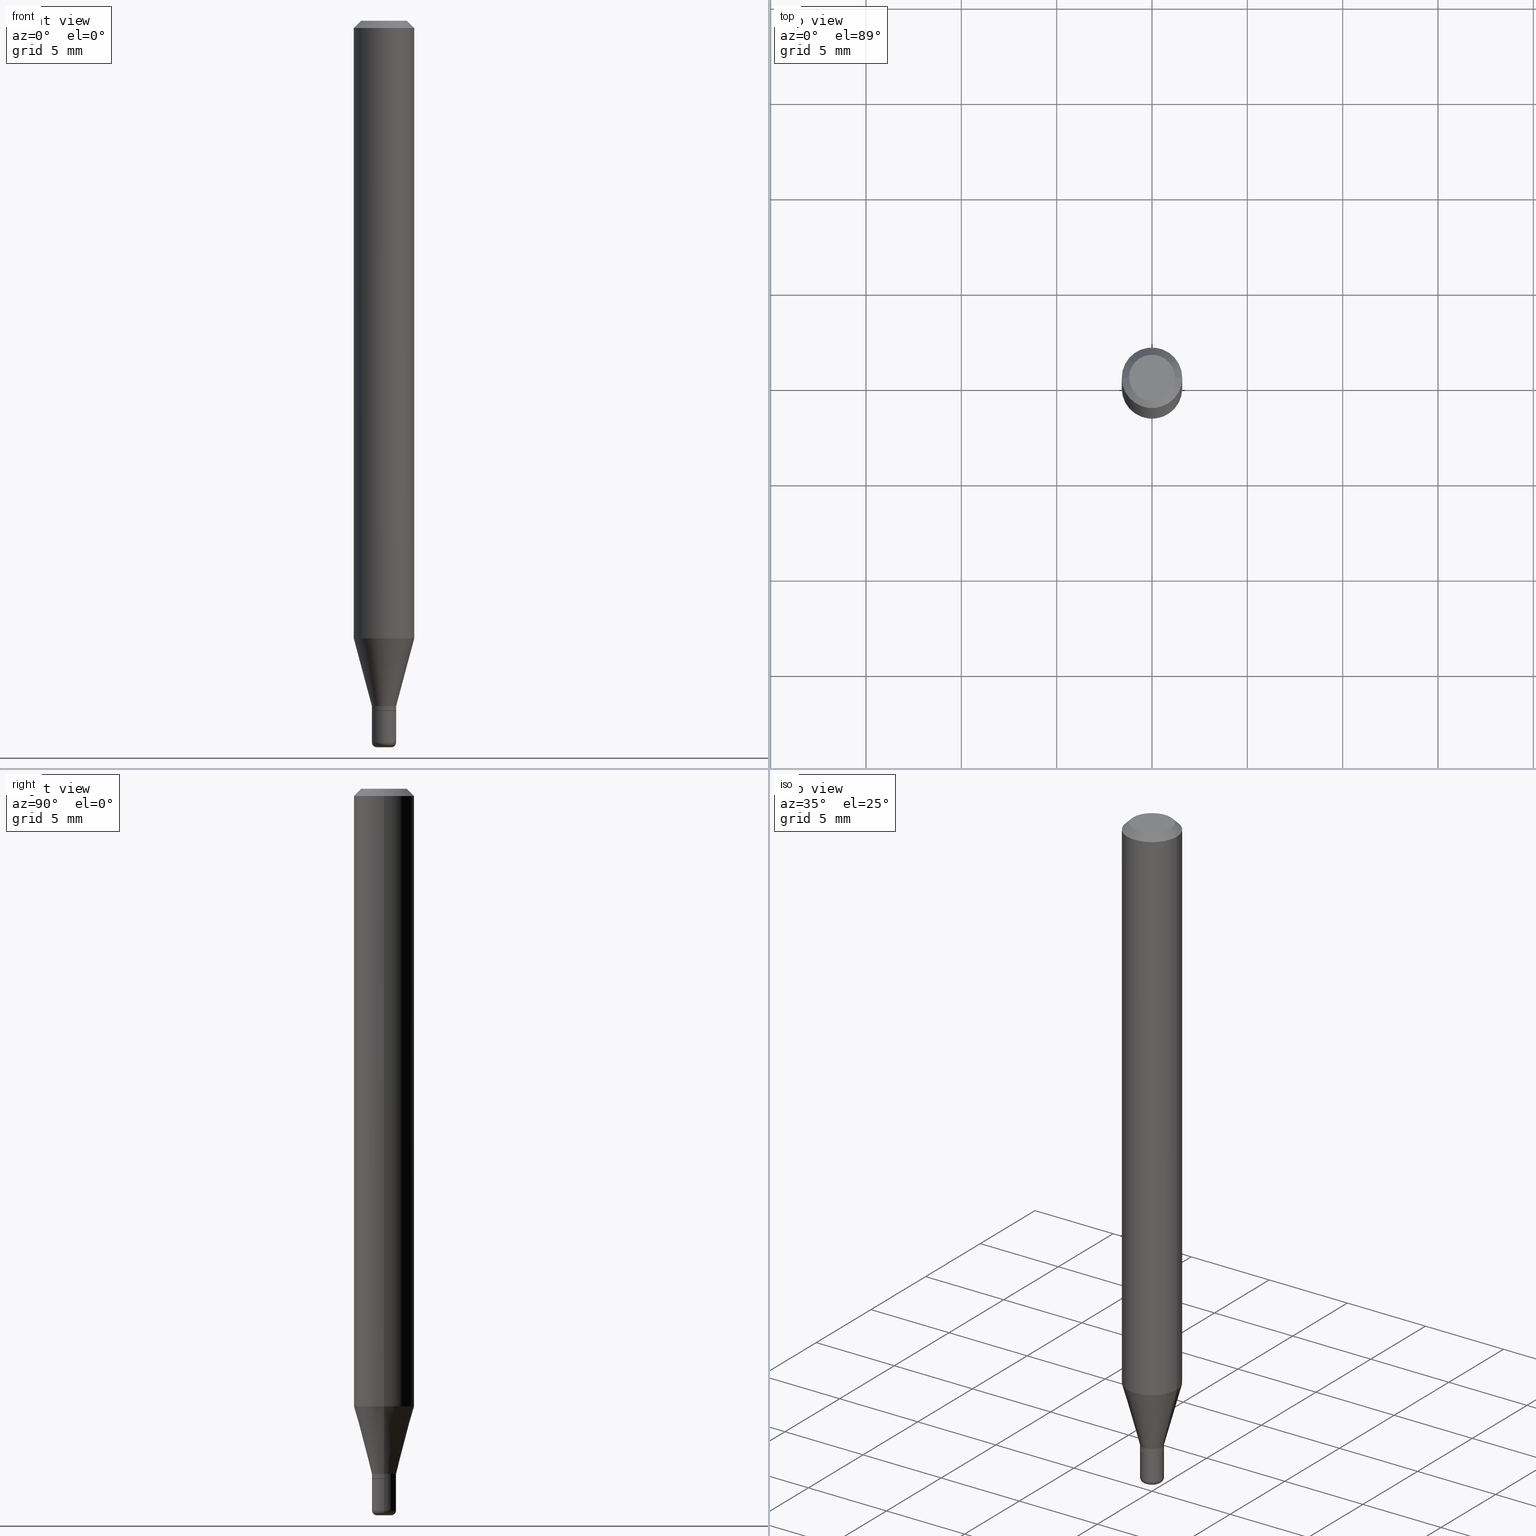
[diagram: canonical four-view strip — front | top / right | iso, engineering-drawing reading convention]
A machine part, canonical four-view strip (front | top / right | iso — engineering-drawing reading convention). The complete STEP part file that produces these views, byte-faithful:
ISO-10303-21;
HEADER;
FILE_DESCRIPTION (( 'STEP AP203' ),
    '1' );
FILE_NAME ('08664.STEP',
    '2024-02-29T20:14:49',
    ( '' ),
    ( '' ),
    'SwSTEP 2.0',
    'SolidWorks 2023',
    '' );
FILE_SCHEMA (( 'CONFIG_CONTROL_DESIGN' ));
ENDSEC;

DATA;
#1 = LINE ( 'NONE', #305, #176 ) ;
#2 = ADVANCED_FACE ( 'NONE', ( #71 ), #383, .T. ) ;
#3 = EDGE_CURVE ( 'NONE', #420, #175, #143, .T. ) ;
#4 = DIRECTION ( 'NONE',  ( -2.445468806185136597E-29, 3.491481338843145583E-15, 1.000000000000000000 ) ) ;
#5 = AXIS2_PLACEMENT_3D ( 'NONE', #472, #480, #190 ) ;
#6 = AXIS2_PLACEMENT_3D ( 'NONE', #204, #56, #365 ) ;
#7 = DIRECTION ( 'NONE',  ( -2.445468806185136877E-29, 3.491481338843145188E-15, 1.000000000000000000 ) ) ;
#8 = VERTEX_POINT ( 'NONE', #225 ) ;
#9 = DIRECTION ( 'NONE',  ( -2.445468806185136597E-29, 3.491481338843145583E-15, 1.000000000000000000 ) ) ;
#10 = CC_DESIGN_PERSON_AND_ORGANIZATION_ASSIGNMENT ( #458, #361, ( #311 ) ) ;
#11 = DIMENSIONAL_EXPONENTS ( 1.000000000000000000, 0.000000000000000000, 0.000000000000000000, 0.000000000000000000, 0.000000000000000000, 0.000000000000000000, 0.000000000000000000 ) ;
#12 = EDGE_LOOP ( 'NONE', ( #432, #274, #140, #326 ) ) ;
#13 = CYLINDRICAL_SURFACE ( 'NONE', #340, 0.06250000000000000000 ) ;
#14 = EDGE_CURVE ( 'NONE', #89, #186, #115, .T. ) ;
#15 = CIRCLE ( 'NONE', #40, 0.02499999999999998057 ) ;
#16 = CARTESIAN_POINT ( 'NONE',  ( 0.02499999999999997363, -5.148189234124219128E-15, -1.424500000000000322 ) ) ;
#17 = CIRCLE ( 'NONE', #228, 0.01500000000000000465 ) ;
#18 = ORIENTED_EDGE ( 'NONE', *, *, #103, .T. ) ;
#19 = SECURITY_CLASSIFICATION_LEVEL ( 'unclassified' ) ;
#20 = CARTESIAN_POINT ( 'NONE',  ( 3.484793048813820547E-29, -4.975360907851483175E-15, -1.425000000000000266 ) ) ;
#21 = ORIENTED_EDGE ( 'NONE', *, *, #435, .T. ) ;
#22 = ADVANCED_FACE ( 'NONE', ( #293 ), #123, .T. ) ;
#23 = PERSON_AND_ORGANIZATION ( #45, #463 ) ;
#24 = DIRECTION ( 'NONE',  ( -2.445468806185136597E-29, 3.491481338843145583E-15, 1.000000000000000000 ) ) ;
#25 = COORDINATED_UNIVERSAL_TIME_OFFSET ( 5, 0, .BEHIND. ) ;
#26 = FACE_OUTER_BOUND ( 'NONE', #370, .T. ) ;
#27 = AXIS2_PLACEMENT_3D ( 'NONE', #152, #425, #233 ) ;
#28 = EDGE_CURVE ( 'NONE', #268, #447, #504, .T. ) ;
#29 = DIRECTION ( 'NONE',  ( 1.000000000000000000, -6.982962677686266711E-15, 4.852736867747365086E-29 ) ) ;
#30 = CIRCLE ( 'NONE', #377, 0.02499999999999997363 ) ;
#31 = LINE ( 'NONE', #144, #198 ) ;
#32 = DIRECTION ( 'NONE',  ( -2.445468806185136597E-29, 3.491481338843145583E-15, 1.000000000000000000 ) ) ;
#33 = DIRECTION ( 'NONE',  ( -2.445468806185136877E-29, 3.491481338843145188E-15, 1.000000000000000000 ) ) ;
#34 = CIRCLE ( 'NONE', #41, 0.02449999999999996972 ) ;
#35 = CARTESIAN_POINT ( 'NONE',  ( 3.483570314410727746E-29, -4.973615167182062460E-15, -1.424500000000000322 ) ) ;
#36 = CARTESIAN_POINT ( 'NONE',  ( 3.460338360751968441E-29, -4.940446094463050737E-15, -1.415000000000000036 ) ) ;
#37 = ORIENTED_EDGE ( 'NONE', *, *, #95, .F. ) ;
#38 = CARTESIAN_POINT ( 'NONE',  ( 0.06250000000000000000, -4.888241796184395369E-15, -1.275048094716166869 ) ) ;
#39 = CC_DESIGN_PERSON_AND_ORGANIZATION_ASSIGNMENT ( #371, #494, ( #296 ) ) ;
#40 = AXIS2_PLACEMENT_3D ( 'NONE', #461, #4, #77 ) ;
#41 = AXIS2_PLACEMENT_3D ( 'NONE', #20, #9, #163 ) ;
#42 = DIRECTION ( 'NONE',  ( -2.445468806185136597E-29, 3.491481338843145583E-15, 1.000000000000000000 ) ) ;
#43 = ORIENTED_EDGE ( 'NONE', *, *, #352, .T. ) ;
#44 = DIRECTION ( 'NONE',  ( 1.000000000000000000, -6.982962677686262766E-15, 0.000000000000000000 ) ) ;
#45 = PERSON ( 'UNSPECIFIED', 'UNSPECIFIED', 'UNSPECIFIED', ('UNSPECIFIED'), ('UNSPECIFIED'), ('UNSPECIFIED') ) ;
#46 = FACE_OUTER_BOUND ( 'NONE', #336, .T. ) ;
#47 = AXIS2_PLACEMENT_3D ( 'NONE', #118, #351, #269 ) ;
#48 = APPROVAL_PERSON_ORGANIZATION ( #322, #220, #290 ) ;
#49 = CC_DESIGN_APPROVAL ( #220, ( #482 ) ) ;
#50 = DIRECTION ( 'NONE',  ( -2.445468806185136597E-29, 3.491481338843145583E-15, 1.000000000000000000 ) ) ;
#51 = ORIENTED_EDGE ( 'NONE', *, *, #54, .T. ) ;
#52 = LINE ( 'NONE', #202, #177 ) ;
#53 = CARTESIAN_POINT ( 'NONE',  ( -0.02499999999999997363, -4.795979483242037256E-15, -1.424500000000000322 ) ) ;
#54 = EDGE_CURVE ( 'NONE', #113, #239, #216, .T. ) ;
#55 = CALENDAR_DATE ( 2024, 29, 2 ) ;
#56 = DIRECTION ( 'NONE',  ( -2.445468806185136597E-29, 3.491481338843145583E-15, 1.000000000000000000 ) ) ;
#57 = EDGE_CURVE ( 'NONE', #447, #420, #206, .T. ) ;
#58 = EDGE_CURVE ( 'NONE', #184, #437, #191, .T. ) ;
#59 = ORIENTED_EDGE ( 'NONE', *, *, #58, .F. ) ;
#60 = DIRECTION ( 'NONE',  ( -0.7071067811865479058, 2.468850131082261005E-15, -0.7071067811865471286 ) ) ;
#61 = APPROVAL_DATE_TIME ( #405, #495 ) ;
#62 = DIRECTION ( 'NONE',  ( 1.000000000000000000, -6.982962677686262766E-15, 0.000000000000000000 ) ) ;
#63 = DIRECTION ( 'NONE',  ( -2.445468806185136877E-29, 3.491481338843145188E-15, 1.000000000000000000 ) ) ;
#64 = VECTOR ( 'NONE', #33, 39.37007874015748143 ) ;
#65 = ORIENTED_EDGE ( 'NONE', *, *, #343, .F. ) ;
#66 = DIRECTION ( 'NONE',  ( -1.000000000000000000, 6.982962677686266711E-15, 0.000000000000000000 ) ) ;
#67 = DIRECTION ( 'NONE',  ( -2.445468806185136597E-29, 3.491481338843145583E-15, 1.000000000000000000 ) ) ;
#68 = CARTESIAN_POINT ( 'NONE',  ( 3.484793048813820547E-29, -4.975360907851483175E-15, -1.425000000000000266 ) ) ;
#69 = ADVANCED_FACE ( 'NONE', ( #150 ), #223, .T. ) ;
#70 = DIRECTION ( 'NONE',  ( 1.000000000000000000, -6.982962677686265922E-15, 0.000000000000000000 ) ) ;
#71 = FACE_OUTER_BOUND ( 'NONE', #483, .T. ) ;
#72 = EDGE_CURVE ( 'NONE', #175, #8, #300, .T. ) ;
#73 = DIRECTION ( 'NONE',  ( -2.445468806185136597E-29, 3.491481338843145583E-15, 1.000000000000000000 ) ) ;
#74 = AXIS2_PLACEMENT_3D ( 'NONE', #145, #67, #417 ) ;
#75 = CARTESIAN_POINT ( 'NONE',  ( 3.118090342014177952E-29, -4.451806628829005278E-15, -1.275048094716166869 ) ) ;
#76 = CC_DESIGN_PERSON_AND_ORGANIZATION_ASSIGNMENT ( #318, #486, ( #238 ) ) ;
#77 = DIRECTION ( 'NONE',  ( 1.000000000000000000, -6.982962677686260400E-15, 0.000000000000000000 ) ) ;
#78 = PLANE ( 'NONE',  #356 ) ;
#79 = AXIS2_PLACEMENT_3D ( 'NONE', #36, #156, #307 ) ;
#80 = APPROVAL_PERSON_ORGANIZATION ( #497, #495, #141 ) ;
#81 = ORIENTED_EDGE ( 'NONE', *, *, #298, .T. ) ;
#82 = CARTESIAN_POINT ( 'NONE',  ( 0.06250000000000000000, -4.888073874380378612E-16, -0.01499999999999970281 ) ) ;
#83 = EDGE_LOOP ( 'NONE', ( #18, #212, #247, #65 ) ) ;
#84 = EDGE_LOOP ( 'NONE', ( #448, #515, #304, #467 ) ) ;
#85 = CARTESIAN_POINT ( 'NONE',  ( -0.02449999999999996972, -4.798628710416148457E-15, -1.425000000000000266 ) ) ;
#86 = FACE_OUTER_BOUND ( 'NONE', #12, .T. ) ;
#87 = DATE_AND_TIME ( #55, #148 ) ;
#88 = PLANE ( 'NONE',  #99 ) ;
#89 = VERTEX_POINT ( 'NONE', #466 ) ;
#90 = PERSON_AND_ORGANIZATION_ROLE ( 'creator' ) ;
#91 = CARTESIAN_POINT ( 'NONE',  ( 1.745740669421915009E-16, 0.02499999999999502620, -1.425000000000000266 ) ) ;
#92 = ORIENTED_EDGE ( 'NONE', *, *, #298, .F. ) ;
#93 = EDGE_CURVE ( 'NONE', #437, #184, #423, .T. ) ;
#94 = CYLINDRICAL_SURFACE ( 'NONE', #278, 0.02499999999999997710 ) ;
#95 = EDGE_CURVE ( 'NONE', #184, #239, #31, .T. ) ;
#96 = ORIENTED_EDGE ( 'NONE', *, *, #28, .T. ) ;
#97 = CONICAL_SURFACE ( 'NONE', #5, 0.06250000000000000000, 0.7853981633974488341 ) ;
#98 = DIRECTION ( 'NONE',  ( -2.445468806185136597E-29, 3.491481338843145583E-15, 1.000000000000000000 ) ) ;
#99 = AXIS2_PLACEMENT_3D ( 'NONE', #91, #211, #276 ) ;
#100 = VERTEX_POINT ( 'NONE', #375 ) ;
#101 = ORIENTED_EDGE ( 'NONE', *, *, #234, .F. ) ;
#102 = CALENDAR_DATE ( 2024, 29, 2 ) ;
#103 = EDGE_CURVE ( 'NONE', #209, #175, #15, .T. ) ;
#104 = DIRECTION ( 'NONE',  ( -6.982962677686266711E-15, -1.000000000000000000, 3.491481338843145583E-15 ) ) ;
#105 = EDGE_LOOP ( 'NONE', ( #37, #288, #182, #507 ) ) ;
#106 = ADVANCED_FACE ( 'NONE', ( #120 ), #308, .T. ) ;
#107 =( CONVERSION_BASED_UNIT ( 'INCH', #110 ) LENGTH_UNIT ( ) NAMED_UNIT ( #11 ) );
#108 = TOROIDAL_SURFACE ( 'NONE', #462, 0.01500000000000000291, 0.009999999999999946432 ) ;
#109 = EDGE_LOOP ( 'NONE', ( #43, #283 ) ) ;
#110 = LENGTH_MEASURE_WITH_UNIT ( LENGTH_MEASURE( 0.02539999999999999897 ), #415 );
#111 = ADVANCED_FACE ( 'NONE', ( #513 ), #451, .T. ) ;
#112 = DIRECTION ( 'NONE',  ( -2.445468806185136597E-29, 3.491481338843145583E-15, 1.000000000000000000 ) ) ;
#113 = VERTEX_POINT ( 'NONE', #38 ) ;
#114 = ADVANCED_FACE ( 'NONE', ( #312 ), #97, .T. ) ;
#115 = LINE ( 'NONE', #345, #146 ) ;
#116 = AXIS2_PLACEMENT_3D ( 'NONE', #396, #271, #428 ) ;
#117 = CC_DESIGN_APPROVAL ( #495, ( #296 ) ) ;
#118 = CARTESIAN_POINT ( 'NONE',  ( 3.582686580359766038E-29, -5.359686688179453325E-15, -1.500000000000000222 ) ) ;
#119 = ADVANCED_FACE ( 'NONE', ( #46 ), #78, .F. ) ;
#120 = FACE_OUTER_BOUND ( 'NONE', #244, .T. ) ;
#121 = EDGE_CURVE ( 'NONE', #100, #89, #265, .T. ) ;
#122 = CARTESIAN_POINT ( 'NONE',  ( -0.01500000000000000291, -5.095725784512272983E-15, -1.490000000000000213 ) ) ;
#123 = CONICAL_SURFACE ( 'NONE', #159, 0.02449999999999996972, 0.7853981633975507526 ) ;
#124 = CARTESIAN_POINT ( 'NONE',  ( 3.643748521215853910E-29, -5.202307194876288105E-15, -1.490000000000000213 ) ) ;
#125 = DIRECTION ( 'NONE',  ( -2.445468806185136597E-29, 3.491481338843145583E-15, 1.000000000000000000 ) ) ;
#126 = EDGE_LOOP ( 'NONE', ( #502, #203 ) ) ;
#127 = APPLICATION_CONTEXT ( 'configuration controlled 3d designs of mechanical parts and assemblies' ) ;
#128 = FACE_OUTER_BOUND ( 'NONE', #83, .T. ) ;
#129 = EDGE_LOOP ( 'NONE', ( #403, #422, #385, #92 ) ) ;
#130 = CONICAL_SURFACE ( 'NONE', #185, 0.02499999999999998057, 0.2617993877991491858 ) ;
#131 = FACE_OUTER_BOUND ( 'NONE', #109, .T. ) ;
#132 = ORIENTED_EDGE ( 'NONE', *, *, #205, .F. ) ;
#133 = DIRECTION ( 'NONE',  ( -2.445468806185136597E-29, 3.491481338843145583E-15, 1.000000000000000000 ) ) ;
#134 = CALENDAR_DATE ( 2024, 29, 2 ) ;
#135 = PLANE ( 'NONE',  #232 ) ;
#136 = VERTEX_POINT ( 'NONE', #275 ) ;
#137 = COORDINATED_UNIVERSAL_TIME_OFFSET ( 5, 0, .BEHIND. ) ;
#138 = AXIS2_PLACEMENT_3D ( 'NONE', #334, #112, #416 ) ;
#139 = CARTESIAN_POINT ( 'NONE',  ( 0.000000000000000000, 0.000000000000000000, 0.000000000000000000 ) ) ;
#140 = ORIENTED_EDGE ( 'NONE', *, *, #234, .T. ) ;
#141 = APPROVAL_ROLE ( '' ) ;
#142 = DIRECTION ( 'NONE',  ( 0.000000000000000000, 0.000000000000000000, 1.000000000000000000 ) ) ;
#143 = LINE ( 'NONE', #258, #64 ) ;
#144 = CARTESIAN_POINT ( 'NONE',  ( 0.06250000000000000000, -4.811533449433669144E-16, -0.01499999999999970281 ) ) ;
#145 = CARTESIAN_POINT ( 'NONE',  ( 0.000000000000000000, 0.000000000000000000, 0.000000000000000000 ) ) ;
#146 = VECTOR ( 'NONE', #63, 39.37007874015748143 ) ;
#147 = DIRECTION ( 'NONE',  ( 0.7071067811866199593, -2.468850131083015945E-15, 0.7071067811864750752 ) ) ;
#148 = LOCAL_TIME ( 15, 14, 49.00000000000000000, #240 ) ;
#149 = MECHANICAL_CONTEXT ( 'NONE', #335, 'mechanical' ) ;
#150 = FACE_OUTER_BOUND ( 'NONE', #306, .T. ) ;
#151 = ORIENTED_EDGE ( 'NONE', *, *, #28, .F. ) ;
#152 = CARTESIAN_POINT ( 'NONE',  ( 3.643748521215853910E-29, -5.202307194876288105E-15, -1.490000000000000213 ) ) ;
#153 = APPROVAL_PERSON_ORGANIZATION ( #491, #270, #439 ) ;
#154 = VERTEX_POINT ( 'NONE', #394 ) ;
#155 = PLANE ( 'NONE',  #47 ) ;
#156 = DIRECTION ( 'NONE',  ( -2.445468806185136597E-29, 3.491481338843145583E-15, 1.000000000000000000 ) ) ;
#157 = ORIENTED_EDGE ( 'NONE', *, *, #479, .T. ) ;
#158 = ADVANCED_BREP_SHAPE_REPRESENTATION ( '08664', ( #259, #421, #199 ), #424 ) ;
#159 = AXIS2_PLACEMENT_3D ( 'NONE', #68, #32, #339 ) ;
#160 = AXIS2_PLACEMENT_3D ( 'NONE', #257, #505, #454 ) ;
#161 = ADVANCED_FACE ( 'NONE', ( #433 ), #473, .T. ) ;
#162 = DIRECTION ( 'NONE',  ( 1.000000000000000000, -6.982962677686254878E-15, 0.000000000000000000 ) ) ;
#163 = DIRECTION ( 'NONE',  ( 1.000000000000000000, -6.982962677686282488E-15, 0.000000000000000000 ) ) ;
#164 = CC_DESIGN_PERSON_AND_ORGANIZATION_ASSIGNMENT ( #23, #453, ( #296 ) ) ;
#165 = VERTEX_POINT ( 'NONE', #85 ) ;
#166 = LINE ( 'NONE', #484, #310 ) ;
#167 = APPROVAL_DATE_TIME ( #210, #270 ) ;
#168 = VECTOR ( 'NONE', #60, 39.37007874015748143 ) ;
#169 = DIRECTION ( 'NONE',  ( 1.000000000000000000, -6.982962677686265922E-15, 4.876176775795935793E-29 ) ) ;
#170 = ORIENTED_EDGE ( 'NONE', *, *, #386, .F. ) ;
#171 = CARTESIAN_POINT ( 'NONE',  ( 0.02499999999999998057, -5.115020161405207405E-15, -1.415000000000000036 ) ) ;
#172 = APPROVAL_STATUS ( 'not_yet_approved' ) ;
#173 = UNCERTAINTY_MEASURE_WITH_UNIT (LENGTH_MEASURE( 1.000000000000000082E-05 ), #107, 'distance_accuracy_value', 'NONE');
#174 = DIRECTION ( 'NONE',  ( -2.438088387897960049E-29, 3.491481338843145188E-15, 1.000000000000000000 ) ) ;
#175 = VERTEX_POINT ( 'NONE', #430 ) ;
#176 = VECTOR ( 'NONE', #7, 39.37007874015748143 ) ;
#177 = VECTOR ( 'NONE', #243, 39.37007874015748143 ) ;
#178 = DIRECTION ( 'NONE',  ( -2.445468806185136597E-29, 3.491481338843145583E-15, 1.000000000000000000 ) ) ;
#179 = ORIENTED_EDGE ( 'NONE', *, *, #455, .F. ) ;
#180 = ORIENTED_EDGE ( 'NONE', *, *, #3, .T. ) ;
#181 = CARTESIAN_POINT ( 'NONE',  ( 3.668203209277704895E-29, -5.237222008264718177E-15, -1.500000000000000222 ) ) ;
#182 = ORIENTED_EDGE ( 'NONE', *, *, #392, .T. ) ;
#183 = DIRECTION ( 'NONE',  ( -2.445468806185136597E-29, 3.491481338843145583E-15, 1.000000000000000000 ) ) ;
#184 = VERTEX_POINT ( 'NONE', #197 ) ;
#185 = AXIS2_PLACEMENT_3D ( 'NONE', #325, #251, #315 ) ;
#186 = VERTEX_POINT ( 'NONE', #235 ) ;
#187 = DIRECTION ( 'NONE',  ( -2.445468806185136597E-29, 3.491481338843145583E-15, 1.000000000000000000 ) ) ;
#188 = ORIENTED_EDGE ( 'NONE', *, *, #93, .T. ) ;
#189 = EDGE_LOOP ( 'NONE', ( #485, #353, #314, #280 ) ) ;
#190 = DIRECTION ( 'NONE',  ( -1.000000000000000000, 6.982962677686266711E-15, 0.000000000000000000 ) ) ;
#191 = CIRCLE ( 'NONE', #248, 0.04750000000000000749 ) ;
#192 = CIRCLE ( 'NONE', #501, 0.06250000000000000000 ) ;
#193 = DIRECTION ( 'NONE',  ( -2.445468806185136597E-29, 3.491481338843145583E-15, 1.000000000000000000 ) ) ;
#194 = ORIENTED_EDGE ( 'NONE', *, *, #386, .T. ) ;
#195 = DIRECTION ( 'NONE',  ( -1.000000000000000000, 7.105427357600964782E-15, 0.000000000000000000 ) ) ;
#196 = EDGE_CURVE ( 'NONE', #186, #262, #217, .T. ) ;
#197 = CARTESIAN_POINT ( 'NONE',  ( 0.04750000000000000749, -4.035134999187568762E-16, 2.731847993664288856E-16 ) ) ;
#198 = VECTOR ( 'NONE', #295, 39.37007874015748143 ) ;
#199 = AXIS2_PLACEMENT_3D ( 'NONE', #139, #142, #297 ) ;
#200 = DIRECTION ( 'NONE',  ( 1.000000000000000000, -6.982962677686265922E-15, 4.876176775795935793E-29 ) ) ;
#201 = EDGE_LOOP ( 'NONE', ( #358, #263, #409, #379 ) ) ;
#202 = CARTESIAN_POINT ( 'NONE',  ( 0.02499999999999997363, -1.745740669421564705E-16, 1.219044193948982547E-30 ) ) ;
#203 = ORIENTED_EDGE ( 'NONE', *, *, #468, .F. ) ;
#204 = CARTESIAN_POINT ( 'NONE',  ( 3.460338360751968441E-29, -4.940446094463050737E-15, -1.415000000000000036 ) ) ;
#205 = EDGE_CURVE ( 'NONE', #89, #100, #398, .T. ) ;
#206 = CIRCLE ( 'NONE', #389, 0.02499999999999997363 ) ;
#207 = DATE_AND_TIME ( #284, #267 ) ;
#208 = LINE ( 'NONE', #488, #168 ) ;
#209 = VERTEX_POINT ( 'NONE', #355 ) ;
#210 = DATE_AND_TIME ( #242, #441 ) ;
#211 = DIRECTION ( 'NONE',  ( 2.438088387897960049E-29, -3.491481338843145188E-15, -1.000000000000000000 ) ) ;
#212 = ORIENTED_EDGE ( 'NONE', *, *, #72, .T. ) ;
#213 = ADVANCED_FACE ( 'NONE', ( #303 ), #155, .F. ) ;
#214 = APPLICATION_PROTOCOL_DEFINITION ( 'international standard', 'config_control_design', 1994, #127 ) ;
#215 = CYLINDRICAL_SURFACE ( 'NONE', #74, 0.06250000000000000000 ) ;
#216 = LINE ( 'NONE', #508, #273 ) ;
#217 = CIRCLE ( 'NONE', #509, 0.02500000000000000139 ) ;
#218 = VECTOR ( 'NONE', #286, 39.37007874015748143 ) ;
#219 = DIRECTION ( 'NONE',  ( -2.445468806185136597E-29, 3.491481338843145583E-15, 1.000000000000000000 ) ) ;
#220 = APPROVAL ( #368, 'UNSPECIFIED' ) ;
#221 = CARTESIAN_POINT ( 'NONE',  ( -0.02499999999999998057, -4.762810410523025533E-15, -1.415000000000000036 ) ) ;
#222 = APPLICATION_PROTOCOL_DEFINITION ( 'international standard', 'config_control_design', 1994, #335 ) ;
#223 = CYLINDRICAL_SURFACE ( 'NONE', #138, 0.02499999999999997710 ) ;
#224 = CARTESIAN_POINT ( 'NONE',  ( 3.118090342014177952E-29, -4.451806628829005278E-15, -1.275048094716166869 ) ) ;
#225 = CARTESIAN_POINT ( 'NONE',  ( -0.06250000000000000000, -4.007717418978941084E-15, -1.275048094716166869 ) ) ;
#226 = CLOSED_SHELL ( 'NONE', ( #476, #161, #397, #106, #313, #213 ) ) ;
#227 = CARTESIAN_POINT ( 'NONE',  ( -6.680649051745406845E-45, 9.538196290434862081E-31, 2.731847993664263218E-16 ) ) ;
#228 = AXIS2_PLACEMENT_3D ( 'NONE', #181, #183, #70 ) ;
#229 = DIRECTION ( 'NONE',  ( -2.445468806185136597E-29, 3.491481338843145583E-15, 1.000000000000000000 ) ) ;
#230 = CARTESIAN_POINT ( 'NONE',  ( 0.000000000000000000, 0.000000000000000000, 0.000000000000000000 ) ) ;
#231 = DIRECTION ( 'NONE',  ( 1.000000000000000000, -6.982962677686265922E-15, 4.876176775795935232E-29 ) ) ;
#232 = AXIS2_PLACEMENT_3D ( 'NONE', #436, #174, #169 ) ;
#233 = DIRECTION ( 'NONE',  ( 1.000000000000000000, -6.982962677686269866E-15, 0.000000000000000000 ) ) ;
#234 = EDGE_CURVE ( 'NONE', #447, #209, #1, .T. ) ;
#235 = CARTESIAN_POINT ( 'NONE',  ( -0.02500000000000000139, -4.911198367423860436E-15, -1.425000000000000266 ) ) ;
#236 = PRODUCT_DEFINITION_SHAPE ( 'NONE', 'NONE',  #482 ) ;
#237 = DIRECTION ( 'NONE',  ( 1.000000000000000000, -6.982962677686266711E-15, 4.876176775795935793E-29 ) ) ;
#238 = SECURITY_CLASSIFICATION ( '', '', #19 ) ;
#239 = VERTEX_POINT ( 'NONE', #82 ) ;
#240 = COORDINATED_UNIVERSAL_TIME_OFFSET ( 5, 0, .BEHIND. ) ;
#241 = DIRECTION ( 'NONE',  ( 1.000000000000000000, -6.982962677686266711E-15, 0.000000000000000000 ) ) ;
#242 = CALENDAR_DATE ( 2024, 29, 2 ) ;
#243 = DIRECTION ( 'NONE',  ( -2.445468806185136877E-29, 3.491481338843145188E-15, 1.000000000000000000 ) ) ;
#244 = EDGE_LOOP ( 'NONE', ( #292, #444, #21, #330 ) ) ;
#245 = DIRECTION ( 'NONE',  ( -2.445468806185136597E-29, 3.491481338843145583E-15, 1.000000000000000000 ) ) ;
#246 = ORIENTED_EDGE ( 'NONE', *, *, #95, .T. ) ;
#247 = ORIENTED_EDGE ( 'NONE', *, *, #498, .F. ) ;
#248 = AXIS2_PLACEMENT_3D ( 'NONE', #301, #73, #29 ) ;
#249 = COORDINATED_UNIVERSAL_TIME_OFFSET ( 5, 0, .BEHIND. ) ;
#250 = AXIS2_PLACEMENT_3D ( 'NONE', #341, #178, #413 ) ;
#251 = DIRECTION ( 'NONE',  ( -2.445468806185136597E-29, 3.491481338843145583E-15, 1.000000000000000000 ) ) ;
#252 = ORIENTED_EDGE ( 'NONE', *, *, #324, .F. ) ;
#253 = EDGE_CURVE ( 'NONE', #175, #209, #487, .T. ) ;
#254 = SHAPE_DEFINITION_REPRESENTATION ( #236, #158 ) ;
#255 = DIRECTION ( 'NONE',  ( -2.445468806185136597E-29, 3.491481338843145583E-15, 1.000000000000000000 ) ) ;
#256 = EDGE_LOOP ( 'NONE', ( #342, #179 ) ) ;
#257 = CARTESIAN_POINT ( 'NONE',  ( 3.484793048813820547E-29, -4.975360907851483175E-15, -1.425000000000000266 ) ) ;
#258 = CARTESIAN_POINT ( 'NONE',  ( -0.02499999999999997710, 1.776356839400248838E-16, -1.229733772563725430E-30 ) ) ;
#259 = MANIFOLD_SOLID_BREP ( 'Body-Move/Copy2[1]', #226 ) ;
#260 = VECTOR ( 'NONE', #147, 39.37007874015748143 ) ;
#261 = CONICAL_SURFACE ( 'NONE', #6, 0.02499999999999998057, 0.2617993877991491858 ) ;
#262 = VERTEX_POINT ( 'NONE', #388 ) ;
#263 = ORIENTED_EDGE ( 'NONE', *, *, #14, .T. ) ;
#264 = ORIENTED_EDGE ( 'NONE', *, *, #407, .F. ) ;
#265 = CIRCLE ( 'NONE', #289, 0.02499999999999994588 ) ;
#266 = DIRECTION ( 'NONE',  ( -1.000000000000000000, 6.982962677686265922E-15, -4.876176775795935793E-29 ) ) ;
#267 = LOCAL_TIME ( 15, 14, 49.00000000000000000, #442 ) ;
#268 = VERTEX_POINT ( 'NONE', #475 ) ;
#269 = DIRECTION ( 'NONE',  ( 1.000000000000000000, -6.982962677686265922E-15, 4.876176775795935793E-29 ) ) ;
#270 = APPROVAL ( #410, 'UNSPECIFIED' ) ;
#271 = DIRECTION ( 'NONE',  ( -2.445468806185136597E-29, 3.491481338843145583E-15, 1.000000000000000000 ) ) ;
#272 = DIRECTION ( 'NONE',  ( 7.105427357601001859E-15, 1.000000000000000000, -3.491481338843145583E-15 ) ) ;
#273 = VECTOR ( 'NONE', #465, 39.37007874015748143 ) ;
#274 = ORIENTED_EDGE ( 'NONE', *, *, #407, .T. ) ;
#275 = CARTESIAN_POINT ( 'NONE',  ( 0.01500000000000000465, -5.341966448430012335E-15, -1.500000000000000222 ) ) ;
#276 = DIRECTION ( 'NONE',  ( -1.000000000000000000, 6.982962677686265922E-15, -4.876176775795935793E-29 ) ) ;
#277 = DIRECTION ( 'NONE',  ( -2.445468806185136597E-29, 3.491481338843145583E-15, 1.000000000000000000 ) ) ;
#278 = AXIS2_PLACEMENT_3D ( 'NONE', #399, #50, #200 ) ;
#279 = DIRECTION ( 'NONE',  ( 1.000000000000000000, -6.982962677686261977E-15, 0.000000000000000000 ) ) ;
#280 = ORIENTED_EDGE ( 'NONE', *, *, #54, .F. ) ;
#281 = APPROVAL_DATE_TIME ( #207, #220 ) ;
#282 = DIRECTION ( 'NONE',  ( 1.000000000000000000, -6.982962677686266711E-15, 0.000000000000000000 ) ) ;
#283 = ORIENTED_EDGE ( 'NONE', *, *, #196, .T. ) ;
#284 = CALENDAR_DATE ( 2024, 29, 2 ) ;
#285 = EDGE_CURVE ( 'NONE', #154, #89, #470, .T. ) ;
#286 = DIRECTION ( 'NONE',  ( 0.2588190451025205174, 1.565188264969628476E-15, 0.9659258262890684232 ) ) ;
#287 = EDGE_LOOP ( 'NONE', ( #299, #518, #157, #132 ) ) ;
#288 = ORIENTED_EDGE ( 'NONE', *, *, #93, .F. ) ;
#289 = AXIS2_PLACEMENT_3D ( 'NONE', #124, #193, #481 ) ;
#290 = APPROVAL_ROLE ( '' ) ;
#291 = CIRCLE ( 'NONE', #516, 0.02500000000000000139 ) ;
#292 = ORIENTED_EDGE ( 'NONE', *, *, #14, .F. ) ;
#293 = FACE_OUTER_BOUND ( 'NONE', #360, .T. ) ;
#294 = CARTESIAN_POINT ( 'NONE',  ( -0.06250000000000000000, -1.808000214605762576E-15, -0.01499999999999970281 ) ) ;
#295 = DIRECTION ( 'NONE',  ( 0.7071067811865479058, -7.319954787623257623E-15, -0.7071067811865471286 ) ) ;
#296 = PRODUCT_DEFINITION_FORMATION_WITH_SPECIFIED_SOURCE ( 'ANY', '', #311, .NOT_KNOWN. ) ;
#297 = DIRECTION ( 'NONE',  ( 1.000000000000000000, 0.000000000000000000, 0.000000000000000000 ) ) ;
#298 = EDGE_CURVE ( 'NONE', #8, #113, #514, .T. ) ;
#299 = ORIENTED_EDGE ( 'NONE', *, *, #285, .F. ) ;
#300 = LINE ( 'NONE', #221, #348 ) ;
#301 = CARTESIAN_POINT ( 'NONE',  ( -6.680649051745406845E-45, 9.538196290434862081E-31, 2.731847993664263218E-16 ) ) ;
#302 = CIRCLE ( 'NONE', #250, 0.01500000000000000465 ) ;
#303 = FACE_OUTER_BOUND ( 'NONE', #126, .T. ) ;
#304 = ORIENTED_EDGE ( 'NONE', *, *, #121, .F. ) ;
#305 = CARTESIAN_POINT ( 'NONE',  ( 0.02499999999999997710, -1.745740669421564952E-16, 1.219044193948982897E-30 ) ) ;
#306 = EDGE_LOOP ( 'NONE', ( #347, #180, #374, #101 ) ) ;
#307 = DIRECTION ( 'NONE',  ( 1.000000000000000000, -6.982962677686260400E-15, 0.000000000000000000 ) ) ;
#308 = CYLINDRICAL_SURFACE ( 'NONE', #309, 0.02499999999999997363 ) ;
#309 = AXIS2_PLACEMENT_3D ( 'NONE', #517, #42, #387 ) ;
#310 = VECTOR ( 'NONE', #440, 39.37007874015748143 ) ;
#311 = PRODUCT ( '08664', '08664', '', ( #149 ) ) ;
#312 = FACE_OUTER_BOUND ( 'NONE', #105, .T. ) ;
#313 = ADVANCED_FACE ( 'NONE', ( #354 ), #108, .T. ) ;
#314 = ORIENTED_EDGE ( 'NONE', *, *, #367, .F. ) ;
#315 = DIRECTION ( 'NONE',  ( 1.000000000000000000, -6.982962677686260400E-15, 0.000000000000000000 ) ) ;
#316 = ADVANCED_FACE ( 'NONE', ( #496 ), #135, .F. ) ;
#317 = ORIENTED_EDGE ( 'NONE', *, *, #367, .T. ) ;
#318 = PERSON_AND_ORGANIZATION ( #45, #463 ) ;
#319 = DIRECTION ( 'NONE',  ( 1.000000000000000000, -6.982962677686254878E-15, 0.000000000000000000 ) ) ;
#320 = AXIS2_PLACEMENT_3D ( 'NONE', #75, #187, #44 ) ;
#321 = CC_DESIGN_SECURITY_CLASSIFICATION ( #238, ( #296 ) ) ;
#322 = PERSON_AND_ORGANIZATION ( #45, #463 ) ;
#323 = CARTESIAN_POINT ( 'NONE',  ( -0.06250000000000000000, 4.440892098500626162E-16, -3.074334431409316114E-30 ) ) ;
#324 = EDGE_CURVE ( 'NONE', #8, #499, #327, .T. ) ;
#325 = CARTESIAN_POINT ( 'NONE',  ( 3.460338360751968441E-29, -4.940446094463050737E-15, -1.415000000000000036 ) ) ;
#326 = ORIENTED_EDGE ( 'NONE', *, *, #253, .F. ) ;
#327 = LINE ( 'NONE', #323, #366 ) ;
#328 = ORIENTED_EDGE ( 'NONE', *, *, #337, .T. ) ;
#329 = AXIS2_PLACEMENT_3D ( 'NONE', #230, #391, #231 ) ;
#330 = ORIENTED_EDGE ( 'NONE', *, *, #196, .F. ) ;
#331 = LOCAL_TIME ( 15, 14, 49.00000000000000000, #137 ) ;
#332 = PERSON_AND_ORGANIZATION ( #45, #463 ) ;
#333 = CARTESIAN_POINT ( 'NONE',  ( 3.643748521215853910E-29, -5.202307194876288105E-15, -1.490000000000000213 ) ) ;
#334 = CARTESIAN_POINT ( 'NONE',  ( 0.000000000000000000, 0.000000000000000000, 0.000000000000000000 ) ) ;
#335 = APPLICATION_CONTEXT ( 'configuration controlled 3d designs of mechanical parts and assemblies' ) ;
#336 = EDGE_LOOP ( 'NONE', ( #188, #490 ) ) ;
#337 = EDGE_CURVE ( 'NONE', #268, #165, #34, .T. ) ;
#338 = DIRECTION ( 'NONE',  ( 1.000000000000000000, -6.982962677686269866E-15, 4.883557194083113462E-29 ) ) ;
#339 = DIRECTION ( 'NONE',  ( 1.000000000000000000, -6.982962677686282488E-15, 0.000000000000000000 ) ) ;
#340 = AXIS2_PLACEMENT_3D ( 'NONE', #372, #98, #237 ) ;
#341 = CARTESIAN_POINT ( 'NONE',  ( 3.668203209277704895E-29, -5.237222008264718177E-15, -1.500000000000000222 ) ) ;
#342 = ORIENTED_EDGE ( 'NONE', *, *, #337, .F. ) ;
#343 = EDGE_CURVE ( 'NONE', #209, #113, #449, .T. ) ;
#344 = ADVANCED_FACE ( 'NONE', ( #443 ), #13, .T. ) ;
#345 = CARTESIAN_POINT ( 'NONE',  ( -0.02499999999999997363, 1.776356839400248591E-16, -1.229733772563725079E-30 ) ) ;
#346 = CARTESIAN_POINT ( 'NONE',  ( 3.316907271900976589E-16, 0.04750000000000000749, -2.925296391183627249E-17 ) ) ;
#347 = ORIENTED_EDGE ( 'NONE', *, *, #57, .T. ) ;
#348 = VECTOR ( 'NONE', #381, 39.37007874015748143 ) ;
#349 = CIRCLE ( 'NONE', #489, 0.06250000000000000000 ) ;
#350 = CARTESIAN_POINT ( 'NONE',  ( 3.484793048813820547E-29, -4.975360907851483175E-15, -1.425000000000000266 ) ) ;
#351 = DIRECTION ( 'NONE',  ( -2.438088387897960049E-29, 3.491481338843145188E-15, 1.000000000000000000 ) ) ;
#352 = EDGE_CURVE ( 'NONE', #262, #186, #291, .T. ) ;
#353 = ORIENTED_EDGE ( 'NONE', *, *, #324, .T. ) ;
#354 = FACE_OUTER_BOUND ( 'NONE', #287, .T. ) ;
#355 = CARTESIAN_POINT ( 'NONE',  ( 0.02499999999999998057, -5.115020161405207405E-15, -1.415000000000000036 ) ) ;
#356 = AXIS2_PLACEMENT_3D ( 'NONE', #346, #427, #266 ) ;
#357 = CIRCLE ( 'NONE', #510, 0.009999999999999944697 ) ;
#358 = ORIENTED_EDGE ( 'NONE', *, *, #121, .T. ) ;
#359 = CARTESIAN_POINT ( 'NONE',  ( 3.668203209277632395E-31, -5.237222008264614861E-17, -0.01499999999999970281 ) ) ;
#360 = EDGE_LOOP ( 'NONE', ( #170, #373, #96, #264 ) ) ;
#361 = PERSON_AND_ORGANIZATION_ROLE ( 'design_owner' ) ;
#362 = DIRECTION ( 'NONE',  ( -2.445468806185136877E-29, 3.491481338843145188E-15, 1.000000000000000000 ) ) ;
#363 = CC_DESIGN_DATE_AND_TIME_ASSIGNMENT ( #87, #445, ( #238 ) ) ;
#364 = DATE_AND_TIME ( #102, #331 ) ;
#365 = DIRECTION ( 'NONE',  ( 1.000000000000000000, -6.982962677686260400E-15, 0.000000000000000000 ) ) ;
#366 = VECTOR ( 'NONE', #362, 39.37007874015748143 ) ;
#367 = EDGE_CURVE ( 'NONE', #239, #499, #349, .T. ) ;
#368 = APPROVAL_STATUS ( 'not_yet_approved' ) ;
#369 = CARTESIAN_POINT ( 'NONE',  ( 3.643748521215853910E-29, -5.202307194876288105E-15, -1.490000000000000213 ) ) ;
#370 = EDGE_LOOP ( 'NONE', ( #252, #81, #51, #450 ) ) ;
#371 = PERSON_AND_ORGANIZATION ( #45, #463 ) ;
#372 = CARTESIAN_POINT ( 'NONE',  ( 0.000000000000000000, 0.000000000000000000, 0.000000000000000000 ) ) ;
#373 = ORIENTED_EDGE ( 'NONE', *, *, #455, .T. ) ;
#374 = ORIENTED_EDGE ( 'NONE', *, *, #103, .F. ) ;
#375 = CARTESIAN_POINT ( 'NONE',  ( 0.02499999999999994588, -5.376881261818443984E-15, -1.490000000000000213 ) ) ;
#376 = AXIS2_PLACEMENT_3D ( 'NONE', #122, #272, #195 ) ;
#377 = AXIS2_PLACEMENT_3D ( 'NONE', #446, #245, #279 ) ;
#378 = DIRECTION ( 'NONE',  ( -2.445468806185136597E-29, 3.491481338843145583E-15, 1.000000000000000000 ) ) ;
#379 = ORIENTED_EDGE ( 'NONE', *, *, #435, .F. ) ;
#380 = FACE_OUTER_BOUND ( 'NONE', #84, .T. ) ;
#381 = DIRECTION ( 'NONE',  ( -0.2588190451025205174, 5.211531920934544731E-15, 0.9659258262890684232 ) ) ;
#382 = ADVANCED_FACE ( 'NONE', ( #128 ), #130, .T. ) ;
#383 = CONICAL_SURFACE ( 'NONE', #408, 0.06250000000000000000, 0.7853981633974488341 ) ;
#384 = CIRCLE ( 'NONE', #160, 0.02449999999999996972 ) ;
#385 = ORIENTED_EDGE ( 'NONE', *, *, #343, .T. ) ;
#386 = EDGE_CURVE ( 'NONE', #165, #420, #166, .T. ) ;
#387 = DIRECTION ( 'NONE',  ( 1.000000000000000000, -6.982962677686265922E-15, 4.876176775795935232E-29 ) ) ;
#388 = CARTESIAN_POINT ( 'NONE',  ( 0.02500000000000000139, -5.149934974793639843E-15, -1.425000000000000266 ) ) ;
#389 = AXIS2_PLACEMENT_3D ( 'NONE', #35, #459, #414 ) ;
#390 = CC_DESIGN_APPROVAL ( #270, ( #238 ) ) ;
#391 = DIRECTION ( 'NONE',  ( -2.445468806185136597E-29, 3.491481338843145583E-15, 1.000000000000000000 ) ) ;
#392 = EDGE_CURVE ( 'NONE', #437, #499, #208, .T. ) ;
#393 = ORIENTED_EDGE ( 'NONE', *, *, #57, .F. ) ;
#394 = CARTESIAN_POINT ( 'NONE',  ( -0.01500000000000000465, -5.077656054418483766E-15, -1.500000000000000222 ) ) ;
#395 = CC_DESIGN_PERSON_AND_ORGANIZATION_ASSIGNMENT ( #332, #90, ( #482 ) ) ;
#396 = CARTESIAN_POINT ( 'NONE',  ( 3.484793048813820547E-29, -4.975360907851483175E-15, -1.425000000000000266 ) ) ;
#397 = ADVANCED_FACE ( 'NONE', ( #131 ), #88, .F. ) ;
#398 = CIRCLE ( 'NONE', #27, 0.02499999999999994588 ) ;
#399 = CARTESIAN_POINT ( 'NONE',  ( 0.000000000000000000, 0.000000000000000000, 0.000000000000000000 ) ) ;
#400 = CIRCLE ( 'NONE', #452, 0.06250000000000000000 ) ;
#401 = EDGE_LOOP ( 'NONE', ( #328, #194, #393, #151 ) ) ;
#402 = CARTESIAN_POINT ( 'NONE',  ( 3.484793048813820547E-29, -4.975360907851483175E-15, -1.425000000000000266 ) ) ;
#403 = ORIENTED_EDGE ( 'NONE', *, *, #72, .F. ) ;
#404 = FACE_OUTER_BOUND ( 'NONE', #129, .T. ) ;
#405 = DATE_AND_TIME ( #134, #471 ) ;
#406 = CARTESIAN_POINT ( 'NONE',  ( -0.04750000000000000749, 3.578768372314221353E-16, 2.731847993664239060E-16 ) ) ;
#407 = EDGE_CURVE ( 'NONE', #420, #447, #30, .T. ) ;
#408 = AXIS2_PLACEMENT_3D ( 'NONE', #511, #506, #66 ) ;
#409 = ORIENTED_EDGE ( 'NONE', *, *, #352, .F. ) ;
#410 = APPROVAL_STATUS ( 'not_yet_approved' ) ;
#411 = CARTESIAN_POINT ( 'NONE',  ( 3.668203209277632395E-31, -5.237222008264614861E-17, -0.01499999999999970281 ) ) ;
#412 = DATE_TIME_ROLE ( 'creation_date' ) ;
#413 = DIRECTION ( 'NONE',  ( 1.000000000000000000, -6.982962677686265922E-15, 0.000000000000000000 ) ) ;
#414 = DIRECTION ( 'NONE',  ( 1.000000000000000000, -6.982962677686261977E-15, 0.000000000000000000 ) ) ;
#415 =( LENGTH_UNIT ( ) NAMED_UNIT ( * ) SI_UNIT ( $, .METRE. ) );
#416 = DIRECTION ( 'NONE',  ( 1.000000000000000000, -6.982962677686265922E-15, 4.876176775795935793E-29 ) ) ;
#417 = DIRECTION ( 'NONE',  ( 1.000000000000000000, -6.982962677686266711E-15, 4.876176775795935793E-29 ) ) ;
#418 = CARTESIAN_POINT ( 'NONE',  ( 0.02449999999999996972, -5.146443493454796836E-15, -1.425000000000000266 ) ) ;
#419 =( NAMED_UNIT ( * ) SI_UNIT ( $, .STERADIAN. ) SOLID_ANGLE_UNIT ( ) );
#420 = VERTEX_POINT ( 'NONE', #53 ) ;
#421 = MANIFOLD_SOLID_BREP ( 'Body-Move/Copy2[2]', #469 ) ;
#422 = ORIENTED_EDGE ( 'NONE', *, *, #253, .T. ) ;
#423 = CIRCLE ( 'NONE', #500, 0.04750000000000000749 ) ;
#424 =( GEOMETRIC_REPRESENTATION_CONTEXT ( 3 ) GLOBAL_UNCERTAINTY_ASSIGNED_CONTEXT ( ( #173 ) ) GLOBAL_UNIT_ASSIGNED_CONTEXT ( ( #107, #503, #419 ) ) REPRESENTATION_CONTEXT ( 'NONE', 'WORKASPACE' ) );
#425 = DIRECTION ( 'NONE',  ( -2.445468806185136597E-29, 3.491481338843145583E-15, 1.000000000000000000 ) ) ;
#426 = ADVANCED_FACE ( 'NONE', ( #86 ), #94, .T. ) ;
#427 = DIRECTION ( 'NONE',  ( 2.438088387897960049E-29, -3.491481338843145188E-15, -1.000000000000000000 ) ) ;
#428 = DIRECTION ( 'NONE',  ( 1.000000000000000000, -6.982962677686282488E-15, 0.000000000000000000 ) ) ;
#429 = AXIS2_PLACEMENT_3D ( 'NONE', #333, #255, #338 ) ;
#430 = CARTESIAN_POINT ( 'NONE',  ( -0.02499999999999998057, -4.385263914750983308E-15, -1.415000000000000036 ) ) ;
#431 = CC_DESIGN_DATE_AND_TIME_ASSIGNMENT ( #364, #412, ( #482 ) ) ;
#432 = ORIENTED_EDGE ( 'NONE', *, *, #3, .F. ) ;
#433 = FACE_OUTER_BOUND ( 'NONE', #201, .T. ) ;
#434 = EDGE_CURVE ( 'NONE', #499, #239, #400, .T. ) ;
#435 = EDGE_CURVE ( 'NONE', #100, #262, #52, .T. ) ;
#436 = CARTESIAN_POINT ( 'NONE',  ( 3.484793048813820547E-29, -4.975360907851483175E-15, -1.425000000000000266 ) ) ;
#437 = VERTEX_POINT ( 'NONE', #406 ) ;
#438 = ADVANCED_FACE ( 'NONE', ( #404 ), #261, .T. ) ;
#439 = APPROVAL_ROLE ( '' ) ;
#440 = DIRECTION ( 'NONE',  ( -0.7071067811866199593, 7.493145998870616062E-15, 0.7071067811864750752 ) ) ;
#441 = LOCAL_TIME ( 15, 14, 49.00000000000000000, #25 ) ;
#442 = COORDINATED_UNIVERSAL_TIME_OFFSET ( 5, 0, .BEHIND. ) ;
#443 = FACE_OUTER_BOUND ( 'NONE', #189, .T. ) ;
#444 = ORIENTED_EDGE ( 'NONE', *, *, #205, .T. ) ;
#445 = DATE_TIME_ROLE ( 'classification_date' ) ;
#446 = CARTESIAN_POINT ( 'NONE',  ( 3.483570314410727746E-29, -4.973615167182062460E-15, -1.424500000000000322 ) ) ;
#447 = VERTEX_POINT ( 'NONE', #16 ) ;
#448 = ORIENTED_EDGE ( 'NONE', *, *, #492, .T. ) ;
#449 = LINE ( 'NONE', #171, #218 ) ;
#450 = ORIENTED_EDGE ( 'NONE', *, *, #434, .F. ) ;
#451 = CONICAL_SURFACE ( 'NONE', #116, 0.02449999999999996972, 0.7853981633975507526 ) ;
#452 = AXIS2_PLACEMENT_3D ( 'NONE', #359, #277, #241 ) ;
#453 = PERSON_AND_ORGANIZATION_ROLE ( 'design_supplier' ) ;
#454 = DIRECTION ( 'NONE',  ( 1.000000000000000000, -6.982962677686282488E-15, 0.000000000000000000 ) ) ;
#455 = EDGE_CURVE ( 'NONE', #165, #268, #384, .T. ) ;
#456 = ORIENTED_EDGE ( 'NONE', *, *, #392, .F. ) ;
#457 = DESIGN_CONTEXT ( 'detailed design', #127, 'design' ) ;
#458 = PERSON_AND_ORGANIZATION ( #45, #463 ) ;
#459 = DIRECTION ( 'NONE',  ( -2.445468806185136597E-29, 3.491481338843145583E-15, 1.000000000000000000 ) ) ;
#460 = CARTESIAN_POINT ( 'NONE',  ( 0.01500000000000000291, -5.307051635041582264E-15, -1.490000000000000213 ) ) ;
#461 = CARTESIAN_POINT ( 'NONE',  ( 3.460338360751968441E-29, -4.940446094463050737E-15, -1.415000000000000036 ) ) ;
#462 = AXIS2_PLACEMENT_3D ( 'NONE', #369, #133, #493 ) ;
#463 = ORGANIZATION ( 'UNSPECIFIED', 'UNSPECIFIED', '' ) ;
#464 = DIRECTION ( 'NONE',  ( 1.000000000000000000, -6.982962677686274599E-15, 0.000000000000000000 ) ) ;
#465 = DIRECTION ( 'NONE',  ( -2.445468806185136877E-29, 3.491481338843145188E-15, 1.000000000000000000 ) ) ;
#466 = CARTESIAN_POINT ( 'NONE',  ( -0.02499999999999994588, -4.911198367423860436E-15, -1.490000000000000213 ) ) ;
#467 = ORIENTED_EDGE ( 'NONE', *, *, #479, .F. ) ;
#468 = EDGE_CURVE ( 'NONE', #154, #136, #17, .T. ) ;
#469 = CLOSED_SHELL ( 'NONE', ( #69, #111, #2, #344, #382, #438, #474, #114, #119, #316, #22, #426 ) ) ;
#470 = CIRCLE ( 'NONE', #376, 0.009999999999999944697 ) ;
#471 = LOCAL_TIME ( 15, 14, 49.00000000000000000, #249 ) ;
#472 = CARTESIAN_POINT ( 'NONE',  ( 3.668203209277632395E-31, -5.237222008264614861E-17, -0.01499999999999970281 ) ) ;
#473 = CYLINDRICAL_SURFACE ( 'NONE', #329, 0.02499999999999997363 ) ;
#474 = ADVANCED_FACE ( 'NONE', ( #26 ), #215, .T. ) ;
#475 = CARTESIAN_POINT ( 'NONE',  ( 0.02449999999999996972, -5.146443493454796836E-15, -1.425000000000000266 ) ) ;
#476 = ADVANCED_FACE ( 'NONE', ( #380 ), #477, .T. ) ;
#477 = TOROIDAL_SURFACE ( 'NONE', #429, 0.01500000000000000291, 0.009999999999999946432 ) ;
#478 = PRODUCT_RELATED_PRODUCT_CATEGORY ( 'detail', '', ( #311 ) ) ;
#479 = EDGE_CURVE ( 'NONE', #136, #100, #357, .T. ) ;
#480 = DIRECTION ( 'NONE',  ( 2.445468806185136597E-29, -3.491481338843145583E-15, -1.000000000000000000 ) ) ;
#481 = DIRECTION ( 'NONE',  ( 1.000000000000000000, -6.982962677686269866E-15, 0.000000000000000000 ) ) ;
#482 = PRODUCT_DEFINITION ( 'UNKNOWN', '', #296, #457 ) ;
#483 = EDGE_LOOP ( 'NONE', ( #59, #246, #317, #456 ) ) ;
#484 = CARTESIAN_POINT ( 'NONE',  ( -0.02449999999999996972, -4.801277937590258869E-15, -1.425000000000000266 ) ) ;
#485 = ORIENTED_EDGE ( 'NONE', *, *, #498, .T. ) ;
#486 = PERSON_AND_ORGANIZATION_ROLE ( 'classification_officer' ) ;
#487 = CIRCLE ( 'NONE', #79, 0.02499999999999998057 ) ;
#488 = CARTESIAN_POINT ( 'NONE',  ( -0.06250000000000000000, 3.840629472727455270E-16, -0.01499999999999970281 ) ) ;
#489 = AXIS2_PLACEMENT_3D ( 'NONE', #411, #24, #282 ) ;
#490 = ORIENTED_EDGE ( 'NONE', *, *, #58, .T. ) ;
#491 = PERSON_AND_ORGANIZATION ( #45, #463 ) ;
#492 = EDGE_CURVE ( 'NONE', #136, #154, #302, .T. ) ;
#493 = DIRECTION ( 'NONE',  ( 1.000000000000000000, -6.982962677686269866E-15, 4.883557194083113462E-29 ) ) ;
#494 = PERSON_AND_ORGANIZATION_ROLE ( 'creator' ) ;
#495 = APPROVAL ( #172, 'UNSPECIFIED' ) ;
#496 = FACE_OUTER_BOUND ( 'NONE', #256, .T. ) ;
#497 = PERSON_AND_ORGANIZATION ( #45, #463 ) ;
#498 = EDGE_CURVE ( 'NONE', #113, #8, #192, .T. ) ;
#499 = VERTEX_POINT ( 'NONE', #294 ) ;
#500 = AXIS2_PLACEMENT_3D ( 'NONE', #227, #378, #512 ) ;
#501 = AXIS2_PLACEMENT_3D ( 'NONE', #224, #219, #62 ) ;
#502 = ORIENTED_EDGE ( 'NONE', *, *, #492, .F. ) ;
#503 =( NAMED_UNIT ( * ) PLANE_ANGLE_UNIT ( ) SI_UNIT ( $, .RADIAN. ) );
#504 = LINE ( 'NONE', #418, #260 ) ;
#505 = DIRECTION ( 'NONE',  ( -2.445468806185136597E-29, 3.491481338843145583E-15, 1.000000000000000000 ) ) ;
#506 = DIRECTION ( 'NONE',  ( 2.445468806185136597E-29, -3.491481338843145583E-15, -1.000000000000000000 ) ) ;
#507 = ORIENTED_EDGE ( 'NONE', *, *, #434, .T. ) ;
#508 = CARTESIAN_POINT ( 'NONE',  ( 0.06250000000000000000, -4.364351673553916694E-16, 3.047610484872459871E-30 ) ) ;
#509 = AXIS2_PLACEMENT_3D ( 'NONE', #350, #229, #162 ) ;
#510 = AXIS2_PLACEMENT_3D ( 'NONE', #460, #104, #464 ) ;
#511 = CARTESIAN_POINT ( 'NONE',  ( 3.668203209277632395E-31, -5.237222008264614861E-17, -0.01499999999999970281 ) ) ;
#512 = DIRECTION ( 'NONE',  ( 1.000000000000000000, -6.982962677686266711E-15, 4.852736867747365086E-29 ) ) ;
#513 = FACE_OUTER_BOUND ( 'NONE', #401, .T. ) ;
#514 = CIRCLE ( 'NONE', #320, 0.06250000000000000000 ) ;
#515 = ORIENTED_EDGE ( 'NONE', *, *, #285, .T. ) ;
#516 = AXIS2_PLACEMENT_3D ( 'NONE', #402, #125, #319 ) ;
#517 = CARTESIAN_POINT ( 'NONE',  ( 0.000000000000000000, 0.000000000000000000, 0.000000000000000000 ) ) ;
#518 = ORIENTED_EDGE ( 'NONE', *, *, #468, .T. ) ;
ENDSEC;
END-ISO-10303-21;
